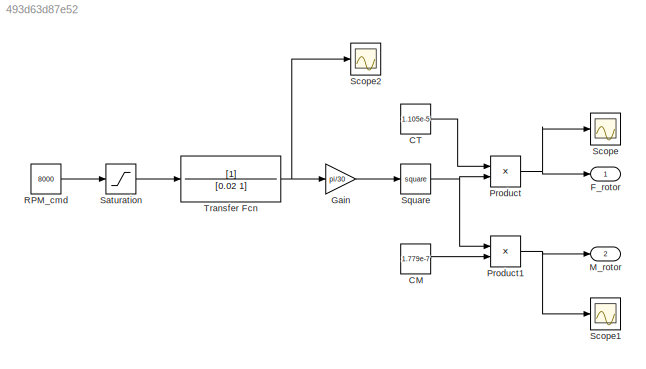
MODEL slx_493d63d87e52
KIND model
CONFIG AbsTol = auto
CONFIG EnableMultiTasking = off
CONFIG FixedStep = 1e-3
CONFIG MaxStep = auto
CONFIG MinStep = auto
CONFIG RelTol = 1e-3
CONFIG SampleTimeConstraint = Unconstrained
CONFIG SolverName = FixedStepAuto
CONFIG StartTime = 0.0
CONFIG StopTime = 10.0
BLOCK [Constant] CM
  Value = 1.779e-7
BLOCK [Constant] CT
  Value = 1.105e-5
BLOCK [Outport] F_rotor
BLOCK [Gain] Gain
  Gain = pi/30
BLOCK [Outport] M_rotor
  Port = 2
BLOCK [Product] Product
BLOCK [Product] Product1
BLOCK [Constant] RPM_cmd
  Value = 8000
BLOCK [Saturate] Saturation
  LowerLimit = 200
  UpperLimit = 10000
BLOCK [Scope] Scope
  Floating = off
  NumInputPorts = 1
  ScopeSpecificationString = Simulink.scopes.TimeScopeBlockCfg('CurrentConfiguration', extmgr.ConfigurationSet(extmgr.Configuration('Core','General UI',true),extmgr.Configuration('Core','Source UI',true),extmgr.Configuration('Sources','WiredSimulink',true),extmgr.Configuration('Visuals','Time Domain',true,'SerializedDisplays',{struct('MinYLimReal','-0.02456','MaxYLimReal','0.221','YLabelReal','','MinYLimMag','0.00000','MaxYLi...<+1348ch>
BLOCK [Scope] Scope1
  Floating = off
  NumInputPorts = 1
  ScopeSpecificationString = Simulink.scopes.TimeScopeBlockCfg('CurrentConfiguration', extmgr.ConfigurationSet(extmgr.Configuration('Core','General UI',true),extmgr.Configuration('Core','Source UI',true),extmgr.Configuration('Sources','WiredSimulink',true,'DataLoggingVariableName','ScopeData1'),extmgr.Configuration('Visuals','Time Domain',true,'SerializedDisplays',{struct('MinYLimReal','-0.0004','MaxYLimReal','0.00356','YLabe...<+1365ch>
BLOCK [Scope] Scope2
  Floating = off
  NumInputPorts = 1
  ScopeSpecificationString = Simulink.scopes.TimeScopeBlockCfg('CurrentConfiguration', extmgr.ConfigurationSet(extmgr.Configuration('Core','General UI',true),extmgr.Configuration('Core','Source UI',true),extmgr.Configuration('Sources','WiredSimulink',true,'DataLoggingVariableName','ScopeData1'),extmgr.Configuration('Visuals','Time Domain',true,'SerializedDisplays',{struct('MinYLimReal','-1000.00000','MaxYLimReal','9000.00000'...<+1420ch>
BLOCK [Math] Square
  Operator = square
BLOCK [TransferFcn] Transfer Fcn
  Denominator = [0.02 1]
LINE CM:1 -> Product1:2
LINE CT:1 -> Product:1
LINE Gain:1 -> Square:1
NET Product1:1 -> M_rotor:1, Scope1:1
NET Product:1 -> F_rotor:1, Scope:1
LINE RPM_cmd:1 -> Saturation:1
LINE Saturation:1 -> Transfer Fcn:1
NET Square:1 -> Product1:1, Product:2
NET Transfer Fcn:1 -> Gain:1, Scope2:1
note: NET lines group one-source signal fan-out (src -> all destinations, sorted); 1:1 wires keep LINE
